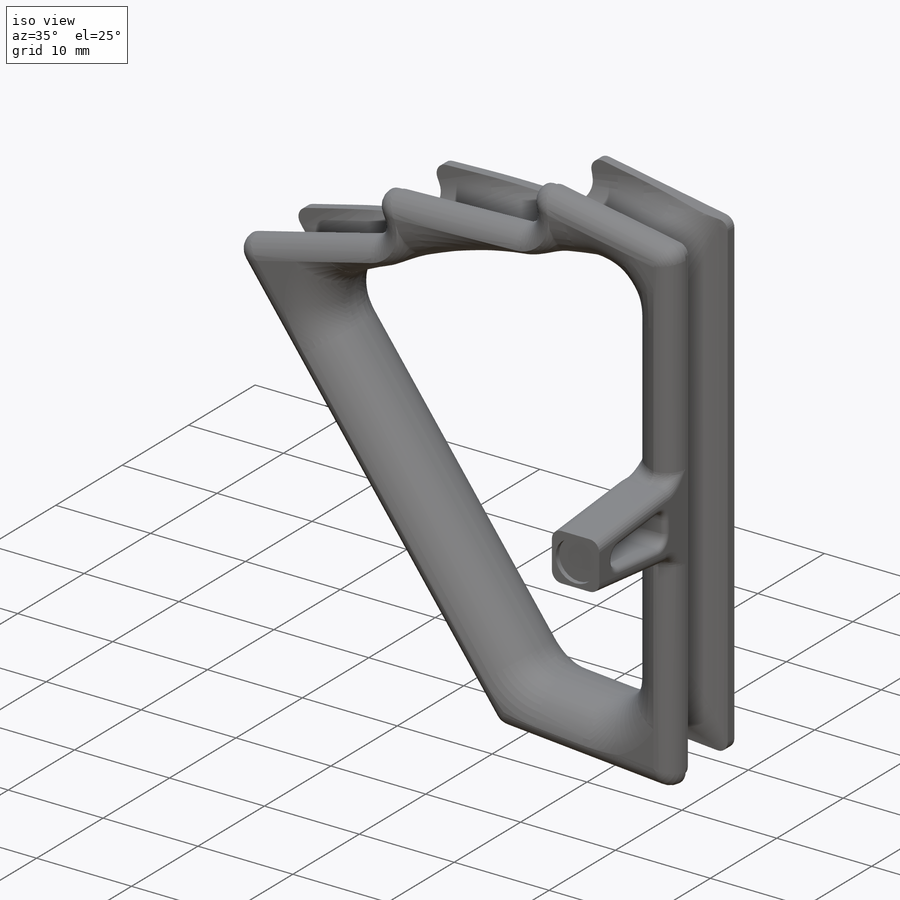
[diagram: iso view]
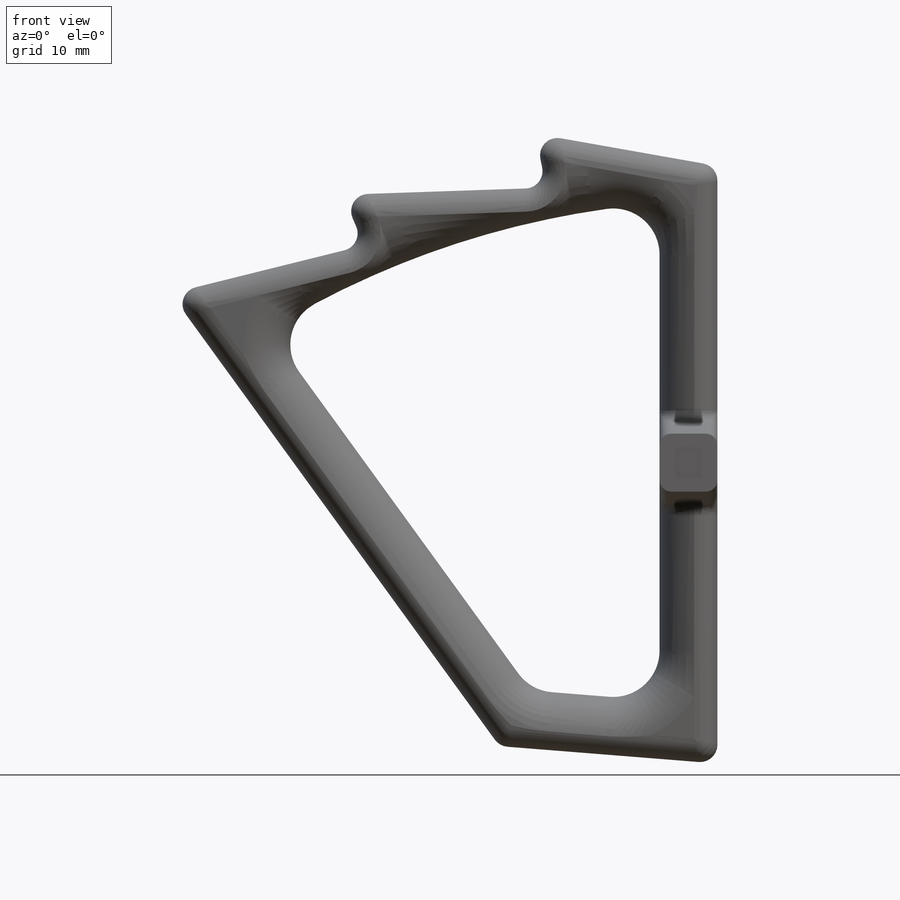
[diagram: front view]
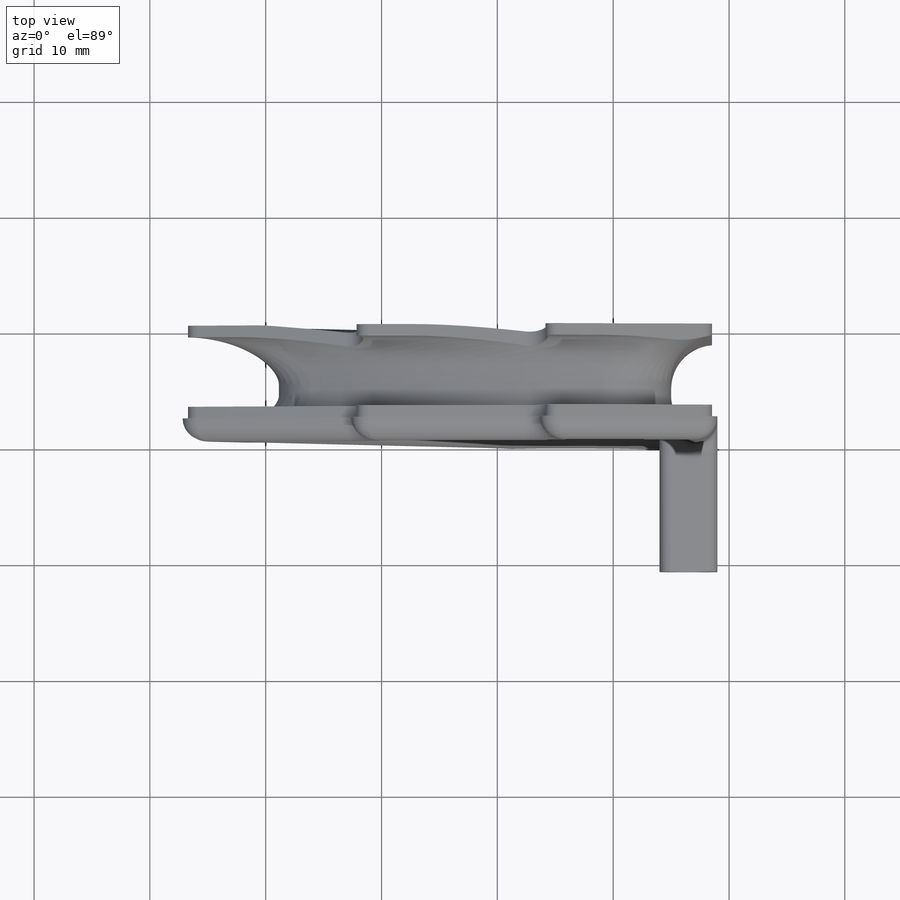
[diagram: top view]
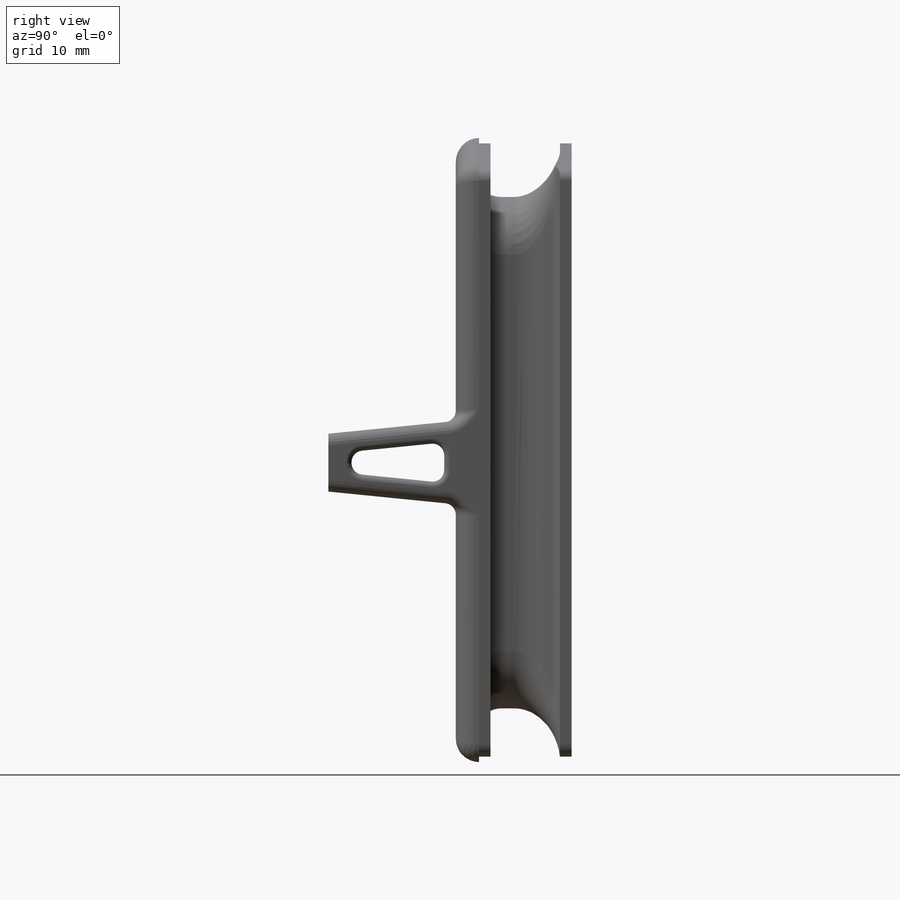
[diagram: right view]
SOLIDWORKS PART (.sldprt)
format: sldprt  version: not decoded by parser v0  size: 1,056,768 bytes
history: native  units: mm
features: sketch x12, fillet x10, cut_extrude x6, plane x5, extrude x3, material x1, cut_revolve x1, chamfer x1 (+11 scaffold rows collapsed)
feature tree (50):
  scaffold x11  (default folders/planes/origin — collapsed)
  material  "ABS"
  sketch  "copy of sector sketch with 470 micron offset to inside"  dims[c1.D1=~54.61226mm c1.D2=~155.350049mm c1.D12=1.5mm c1.D3=~106.055443mm c2.D3=36.0deg c2.D4=~126.613701mm c3.D4=~11.554081deg c3.D5=~127.034955mm c4.D5=12.0deg c4.D6=1.0mm c4.D7=1.0mm c4.D8=~152.080387mm c5.D8=~79.963091deg c5.D9=~152.080387mm c6.D9=~85.436553deg c6.D10=~19.673835mm c7.D10=12.0deg c7.D11=~13.173363mm c8.D11=12.0deg c8.D13=0.47mm]
  sketch  "linked to above sketch"  dims[D1=0.2mm]
  extrude  "Extrude1"  Depth=8mm
  sketch  "Sketch2"  dims[D1=0.47mm]
  extrude  "Extrude2"  Depth=2mm
  sketch  "Sketch3"  dims[c1.D1=~43.316245mm c2.D1=~178.507946deg c3.D1=3.0mm c3.D2=5.0mm c3.D3=5.0mm c3.D4=5.0mm]
  cut_extrude  "Extrude3"  [1 undecoded]
  fillet  "Fillet1"  Radius=4mm
  fillet  "Fillet2"  Radius=5mm
  fillet  "Fillet3"  Radius=2mm
  fillet  "Fillet4"  Radius=4mm
  plane  "Plane1"
  sketch  "Sketch4"  dims[D2=1.0mm D1=1.0mm]
  cut_extrude  "Extrude4"  [1 undecoded]
  plane  "Plane2"
  sketch  "Sketch6"  dims[D2=1.0mm D1=1.0mm]
  cut_extrude  "Extrude5"  [1 undecoded]
  plane  "Plane3"
  sketch  "Sketch7"  dims[D2=1.0mm D1=1.0mm]
  cut_extrude  "Extrude6"  [1 undecoded]
  sketch  "Sketch8"
  plane  "Plane4"
  sketch  "Sketch9"  dims[D2=1.0mm D1=1.0mm]
  cut_revolve  "Cut-Revolve1"  Angle=360deg
  fillet  "Fillet5"  Radius=5mm
  plane  "Plane5"
  sketch  "Sketch11"  dims[c1.D1=4.2mm c1.D3=4.3mm c1.D2=1.0mm c2.D3=1.0mm c2.D2=0.4mm c3.D3=7.0mm]
  extrude  "Boss-Extrude1"  Depth=11mm
  chamfer  "Chamfer1"  Distance=10mm
  sketch  "Sketch13"  dims[D1=2.0mm D2=1.75mm D3=1.0mm]
  cut_extrude  "Cut-Extrude2"  [1 undecoded]
  fillet  "Fillet8"  Radius=1mm
  fillet  "Fillet9"  Radius=1mm
  fillet  "Fillet10"  Radius=1mm
  fillet  "Fillet11"  Radius=1mm
  sketch  "Sketch12"
  cut_extrude  "Cut-Extrude1"  Depth=0.5mm
  fillet  "Fillet12"  Radius=0.5mm
decode coverage: 26 of 33 modeling features carry decoded parameters
note: ~ marks probable driven/reference dimensions
note: 5 parameter values undecoded
summary: no parameter record found for 5 features
note: suppression state not decoded; provenance and decode notes live in map.json
